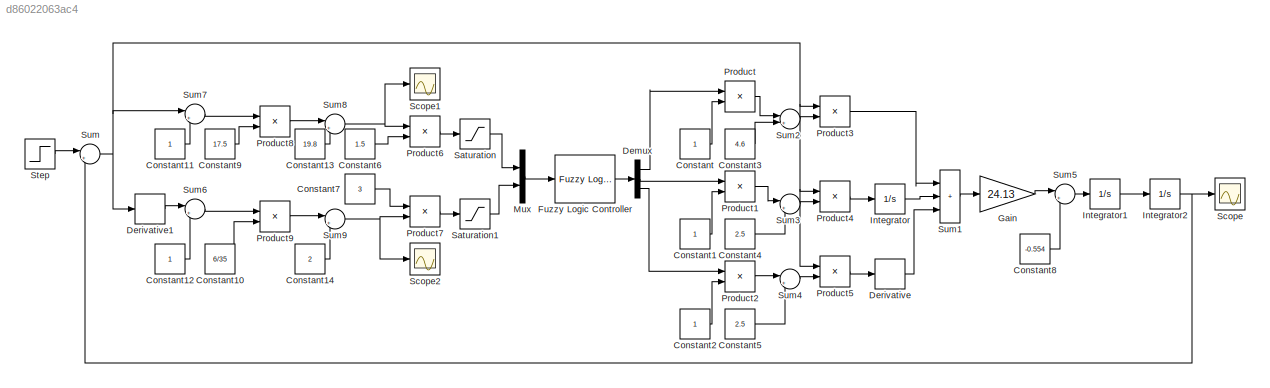
MODEL slx_d86022063ac4
KIND model
CONFIG AbsTol = auto
CONFIG EnableMultiTasking = on
CONFIG FixedStep = 0.01
CONFIG MaxStep = auto
CONFIG MinStep = auto
CONFIG RelTol = 1e-3
CONFIG SampleTimeConstraint = Unconstrained
CONFIG SolverName = ode4
CONFIG StartTime = 0.0
CONFIG StopTime = 20.0
BLOCK [Constant] Constant
BLOCK [Constant] Constant1
BLOCK [Constant] Constant10
  Value = 6/35
BLOCK [Constant] Constant11
BLOCK [Constant] Constant12
BLOCK [Constant] Constant13
  Value = 19.8
BLOCK [Constant] Constant14
  Value = 2
BLOCK [Constant] Constant2
BLOCK [Constant] Constant3
  Value = 4.6
BLOCK [Constant] Constant4
  Value = 2.5
BLOCK [Constant] Constant5
  Value = 2.5
BLOCK [Constant] Constant6
  Value = 1.5
BLOCK [Constant] Constant7
  Value = 3
BLOCK [Constant] Constant8
  Value = -0.554
BLOCK [Constant] Constant9
  Value = 17.5
BLOCK [Demux] Demux
  Outputs = 3
BLOCK [Derivative] Derivative
BLOCK [Derivative] Derivative1
BLOCK [Reference] Fuzzy Logic  Controller  REF=fuzblock/Fuzzy Logic   (lib defined in mdl_858b3b3e7478)
Controller
  SourceBlock = fuzblock/Fuzzy Logic \nController
  SourceType = Fuzzy Inference System
BLOCK [Gain] Gain
  Gain = 24.13
BLOCK [Integrator] Integrator
BLOCK [Integrator] Integrator1
BLOCK [Integrator] Integrator2
BLOCK [Mux] Mux
  DisplayOption = bar
  Inputs = 2
BLOCK [Product] Product
  RndMeth = Zero
BLOCK [Product] Product1
  RndMeth = Zero
BLOCK [Product] Product2
  RndMeth = Zero
BLOCK [Product] Product3
  RndMeth = Zero
BLOCK [Product] Product4
  RndMeth = Zero
BLOCK [Product] Product5
  RndMeth = Zero
BLOCK [Product] Product6
  RndMeth = Zero
BLOCK [Product] Product7
  RndMeth = Zero
BLOCK [Product] Product8
  RndMeth = Zero
BLOCK [Product] Product9
  RndMeth = Zero
BLOCK [Saturate] Saturation
BLOCK [Saturate] Saturation1
BLOCK [Scope] Scope
  Floating = off
  NumInputPorts = 1
  ScopeSpecificationString = C++SS(StrPVP('Location','[1284, 195, 1608, 434]'),StrPVP('Open','off'),MxPVP('AxesTitles',54,'struct(''axes1'',''%<SignalLabel>'')'),MxPVP('ScopeGraphics',57,'struct(''FigureColor'',''[0.5 0.5 0.5]'',''AxesColor'',''[0 0 0]'',''AxesTickColor'',''[1 1 1]'',''LineColors'',''[1 1 0;1 0 1;0 1 1;1 0 0;0 1 0;0 0 1]'',''LineStyles'',''-|-|-|-|-|-'',''LineWidths'',''[0.5 0.5 0.5 0.5 0.5 0.5]'',''MarkerSty...<+322ch>
BLOCK [Scope] Scope1
  Floating = off
  NumInputPorts = 1
  ScopeSpecificationString = C++SS(StrPVP('Location','[686, 377, 1010, 616]'),StrPVP('Open','off'),MxPVP('AxesTitles',54,'struct(''axes1'',''%<SignalLabel>'')'),MxPVP('ScopeGraphics',57,'struct(''FigureColor'',''[0.5 0.5 0.5]'',''AxesColor'',''[0 0 0]'',''AxesTickColor'',''[1 1 1]'',''LineColors'',''[1 1 0;1 0 1;0 1 1;1 0 0;0 1 0;0 0 1]'',''LineStyles'',''-|-|-|-|-|-'',''LineWidths'',''[0.5 0.5 0.5 0.5 0.5 0.5]'',''MarkerStyl...<+272ch>
BLOCK [Scope] Scope2
  Floating = off
  NumInputPorts = 1
  ScopeSpecificationString = C++SS(StrPVP('Location','[1, 48, 1681, 1009]'),StrPVP('Open','off'),MxPVP('AxesTitles',54,'struct(''axes1'',''%<SignalLabel>'')'),MxPVP('ScopeGraphics',57,'struct(''FigureColor'',''[0.5 0.5 0.5]'',''AxesColor'',''[0 0 0]'',''AxesTickColor'',''[1 1 1]'',''LineColors'',''[1 1 0;1 0 1;0 1 1;1 0 0;0 1 0;0 0 1]'',''LineStyles'',''-|-|-|-|-|-'',''LineWidths'',''[0.5 0.5 0.5 0.5 0.5 0.5]'',''MarkerStyles...<+270ch>
BLOCK [Step] Step
  After = 0.3
  SampleTime = 0
BLOCK [Sum] Sum
  Inputs = |+-
BLOCK [Sum] Sum1
  IconShape = rectangular
  Inputs = |+++
BLOCK [Sum] Sum2
  Inputs = |++
BLOCK [Sum] Sum3
  Inputs = |++
BLOCK [Sum] Sum4
  Inputs = |++
BLOCK [Sum] Sum5
  Inputs = |++
BLOCK [Sum] Sum6
  Inputs = |+-
BLOCK [Sum] Sum7
  Inputs = |++
BLOCK [Sum] Sum8
  Inputs = |+-
BLOCK [Sum] Sum9
  Inputs = |+-
LINE Constant10:1 -> Product9:2
LINE Constant11:1 -> Sum7:2
LINE Constant12:1 -> Sum6:2
LINE Constant13:1 -> Sum8:2
LINE Constant14:1 -> Sum9:2
LINE Constant1:1 -> Product1:2
LINE Constant2:1 -> Product2:2
LINE Constant3:1 -> Sum2:2
LINE Constant4:1 -> Sum3:2
LINE Constant5:1 -> Sum4:2
LINE Constant6:1 -> Product6:2
LINE Constant7:1 -> Product7:1
LINE Constant8:1 -> Sum5:2
LINE Constant9:1 -> Product8:2
LINE Constant:1 -> Product:2
LINE Demux:1 -> Product:1
LINE Demux:2 -> Product1:1
LINE Demux:3 -> Product2:1
LINE Derivative1:1 -> Sum6:1
LINE Derivative:1 -> Sum1:3
LINE Fuzzy Logic  Controller:1 -> Demux:1
LINE Gain:1 -> Sum5:1
LINE Integrator1:1 -> Integrator2:1
NET Integrator2:1 -> Scope:1, Sum:2
LINE Integrator:1 -> Sum1:2
LINE Mux:1 -> Fuzzy Logic  Controller:1
LINE Product1:1 -> Sum3:1
LINE Product2:1 -> Sum4:1
LINE Product3:1 -> Sum1:1
LINE Product4:1 -> Integrator:1
LINE Product5:1 -> Derivative:1
LINE Product6:1 -> Saturation:1
LINE Product7:1 -> Saturation1:1
LINE Product8:1 -> Sum8:1
LINE Product9:1 -> Sum9:1
LINE Product:1 -> Sum2:1
LINE Saturation1:1 -> Mux:2
LINE Saturation:1 -> Mux:1
LINE Step:1 -> Sum:1
LINE Sum1:1 -> Gain:1
LINE Sum2:1 -> Product3:2
LINE Sum3:1 -> Product4:2
LINE Sum4:1 -> Product5:2
LINE Sum5:1 -> Integrator1:1
LINE Sum6:1 -> Product9:1
LINE Sum7:1 -> Product8:1
NET Sum8:1 -> Product6:1, Scope1:1
NET Sum9:1 -> Product7:2, Scope2:1
NET Sum:1 -> Derivative1:1, Product3:1, Product4:1, Product5:1, Sum7:1
note: NET lines group one-source signal fan-out (src -> all destinations, sorted); 1:1 wires keep LINE
